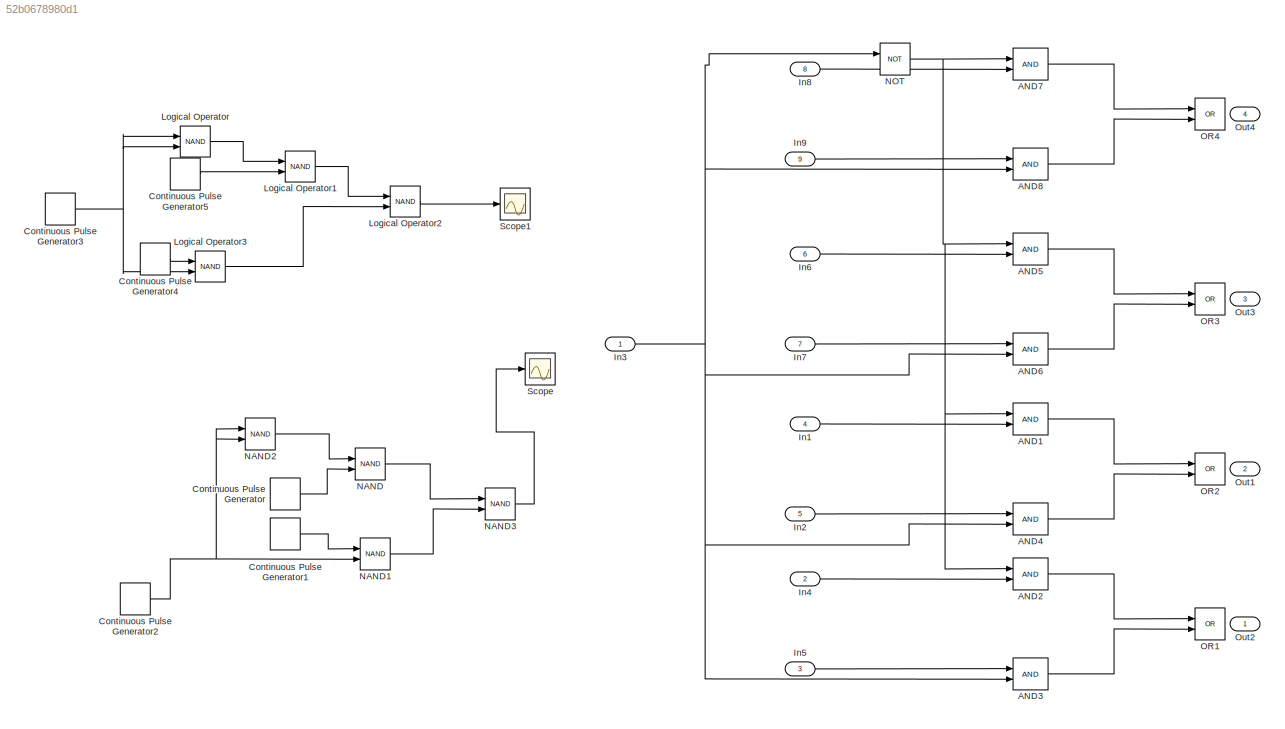
MODEL slx_52b0678980d1
KIND model
CONFIG AbsTol = auto
CONFIG EnableMultiTasking = off
CONFIG FixedStep = auto
CONFIG MaxStep = auto
CONFIG MinStep = auto
CONFIG RelTol = 1e-3
CONFIG SampleTimeConstraint = Unconstrained
CONFIG SolverName = VariableStepAuto
CONFIG StartTime = 0.0
CONFIG StopTime = 10.0
BLOCK [Logic] AND1
  AllPortsSameDT = off
  IconShape = distinctive
  OutDataTypeStr = boolean
BLOCK [Logic] AND2
  AllPortsSameDT = off
  IconShape = distinctive
  OutDataTypeStr = boolean
BLOCK [Logic] AND3
  AllPortsSameDT = off
  IconShape = distinctive
  OutDataTypeStr = boolean
BLOCK [Logic] AND4
  AllPortsSameDT = off
  IconShape = distinctive
  OutDataTypeStr = boolean
BLOCK [Logic] AND5
  AllPortsSameDT = off
  IconShape = distinctive
  OutDataTypeStr = boolean
BLOCK [Logic] AND6
  AllPortsSameDT = off
  IconShape = distinctive
  OutDataTypeStr = boolean
BLOCK [Logic] AND7
  AllPortsSameDT = off
  IconShape = distinctive
  OutDataTypeStr = boolean
BLOCK [Logic] AND8
  AllPortsSameDT = off
  IconShape = distinctive
  OutDataTypeStr = boolean
BLOCK [DiscretePulseGenerator] Continuous Pulse Generator
  Period = 1
  PulseType = Time based
  PulseWidth = 50
BLOCK [DiscretePulseGenerator] Continuous Pulse Generator1
  Period = 1
  PulseType = Time based
  PulseWidth = 50
BLOCK [DiscretePulseGenerator] Continuous Pulse Generator2
  Period = 1
  PulseType = Time based
  PulseWidth = 50
BLOCK [DiscretePulseGenerator] Continuous Pulse Generator3
  Period = 1
  PulseType = Time based
  PulseWidth = 50
BLOCK [DiscretePulseGenerator] Continuous Pulse Generator4
  Period = 1
  PulseType = Time based
  PulseWidth = 50
BLOCK [DiscretePulseGenerator] Continuous Pulse Generator5
  Period = 1
  PulseType = Time based
  PulseWidth = 50
BLOCK [Inport] In1
  Port = 4
BLOCK [Inport] In2
  Port = 5
BLOCK [Inport] In3
BLOCK [Inport] In4
  Port = 2
BLOCK [Inport] In5
  Port = 3
BLOCK [Inport] In6
  Port = 6
BLOCK [Inport] In7
  Port = 7
BLOCK [Inport] In8
  Port = 8
BLOCK [Inport] In9
  Port = 9
BLOCK [Logic] Logical Operator
  AllPortsSameDT = off
  Operator = NAND
  OutDataTypeStr = boolean
BLOCK [Logic] Logical Operator1
  AllPortsSameDT = off
  Operator = NAND
  OutDataTypeStr = boolean
BLOCK [Logic] Logical Operator2
  AllPortsSameDT = off
  Operator = NAND
  OutDataTypeStr = boolean
BLOCK [Logic] Logical Operator3
  AllPortsSameDT = off
  Operator = NAND
  OutDataTypeStr = boolean
BLOCK [Logic] NAND
  AllPortsSameDT = off
  IconShape = distinctive
  Operator = NAND
  OutDataTypeStr = boolean
BLOCK [Logic] NAND1
  AllPortsSameDT = off
  IconShape = distinctive
  Operator = NAND
  OutDataTypeStr = boolean
BLOCK [Logic] NAND2
  AllPortsSameDT = off
  IconShape = distinctive
  Operator = NAND
  OutDataTypeStr = boolean
BLOCK [Logic] NAND3
  AllPortsSameDT = off
  IconShape = distinctive
  Operator = NAND
  OutDataTypeStr = boolean
BLOCK [Logic] NOT
  AllPortsSameDT = off
  IconShape = distinctive
  Operator = NOT
  OutDataTypeStr = boolean
BLOCK [Logic] OR1
  AllPortsSameDT = off
  IconShape = distinctive
  Operator = OR
  OutDataTypeStr = boolean
BLOCK [Logic] OR2
  AllPortsSameDT = off
  IconShape = distinctive
  Operator = OR
  OutDataTypeStr = boolean
BLOCK [Logic] OR3
  AllPortsSameDT = off
  IconShape = distinctive
  Operator = OR
  OutDataTypeStr = boolean
BLOCK [Logic] OR4
  AllPortsSameDT = off
  IconShape = distinctive
  Operator = OR
  OutDataTypeStr = boolean
BLOCK [Outport] Out1
  Port = 2
BLOCK [Outport] Out2
BLOCK [Outport] Out3
  Port = 3
BLOCK [Outport] Out4
  Port = 4
BLOCK [Scope] Scope
  Floating = off
  NumInputPorts = 1
  ScopeSpecificationString = Simulink.scopes.TimeScopeBlockCfg('CurrentConfiguration', extmgr.ConfigurationSet(extmgr.Configuration('Core','General UI',true),extmgr.Configuration('Core','Source UI',true),extmgr.Configuration('Sources','WiredSimulink',true),extmgr.Configuration('Visuals','Time Domain',true,'SerializedDisplays',{struct('MinYLimReal','-0.125','MaxYLimReal','1.125','YLabelReal','','MinYLimMag','0.00000','MaxYLimM...<+1402ch>
BLOCK [Scope] Scope1
  Floating = off
  NumInputPorts = 1
  ScopeSpecificationString = Simulink.scopes.TimeScopeBlockCfg('CurrentConfiguration', extmgr.ConfigurationSet(extmgr.Configuration('Core','General UI',true),extmgr.Configuration('Core','Source UI',true),extmgr.Configuration('Sources','WiredSimulink',true,'DataLoggingVariableName','ScopeData1'),extmgr.Configuration('Visuals','Time Domain',true,'SerializedDisplays',{struct('MinYLimReal','-0.125','MaxYLimReal','1.125','YLabelRe...<+2204ch>
LINE AND1:1 -> OR2:1
LINE AND2:1 -> OR1:1
LINE AND3:1 -> OR1:2
LINE AND4:1 -> OR2:2
LINE AND5:1 -> OR3:1
LINE AND6:1 -> OR3:2
LINE AND7:1 -> OR4:1
LINE AND8:1 -> OR4:2
LINE Continuous Pulse Generator1:1 -> NAND1:1
NET Continuous Pulse Generator2:1 -> NAND1:2, NAND2:1, NAND2:2
NET Continuous Pulse Generator3:1 -> Logical Operator3:2, Logical Operator:1, Logical Operator:2
LINE Continuous Pulse Generator4:1 -> Logical Operator3:1
LINE Continuous Pulse Generator5:1 -> Logical Operator1:2
LINE Continuous Pulse Generator:1 -> NAND:2
LINE In1:1 -> AND1:2
LINE In2:1 -> AND4:1
NET In3:1 -> AND3:2, AND4:2, AND6:2, AND8:2, NOT:1
LINE In4:1 -> AND2:2
LINE In5:1 -> AND3:1
LINE In6:1 -> AND5:2
LINE In7:1 -> AND6:1
LINE In8:1 -> AND7:2
LINE In9:1 -> AND8:1
LINE Logical Operator1:1 -> Logical Operator2:1
LINE Logical Operator2:1 -> Scope1:1
LINE Logical Operator3:1 -> Logical Operator2:2
LINE Logical Operator:1 -> Logical Operator1:1
LINE NAND1:1 -> NAND3:2
LINE NAND2:1 -> NAND:1
LINE NAND3:1 -> Scope:1
LINE NAND:1 -> NAND3:1
NET NOT:1 -> AND1:1, AND2:1, AND5:1, AND7:1
note: NET lines group one-source signal fan-out (src -> all destinations, sorted); 1:1 wires keep LINE
